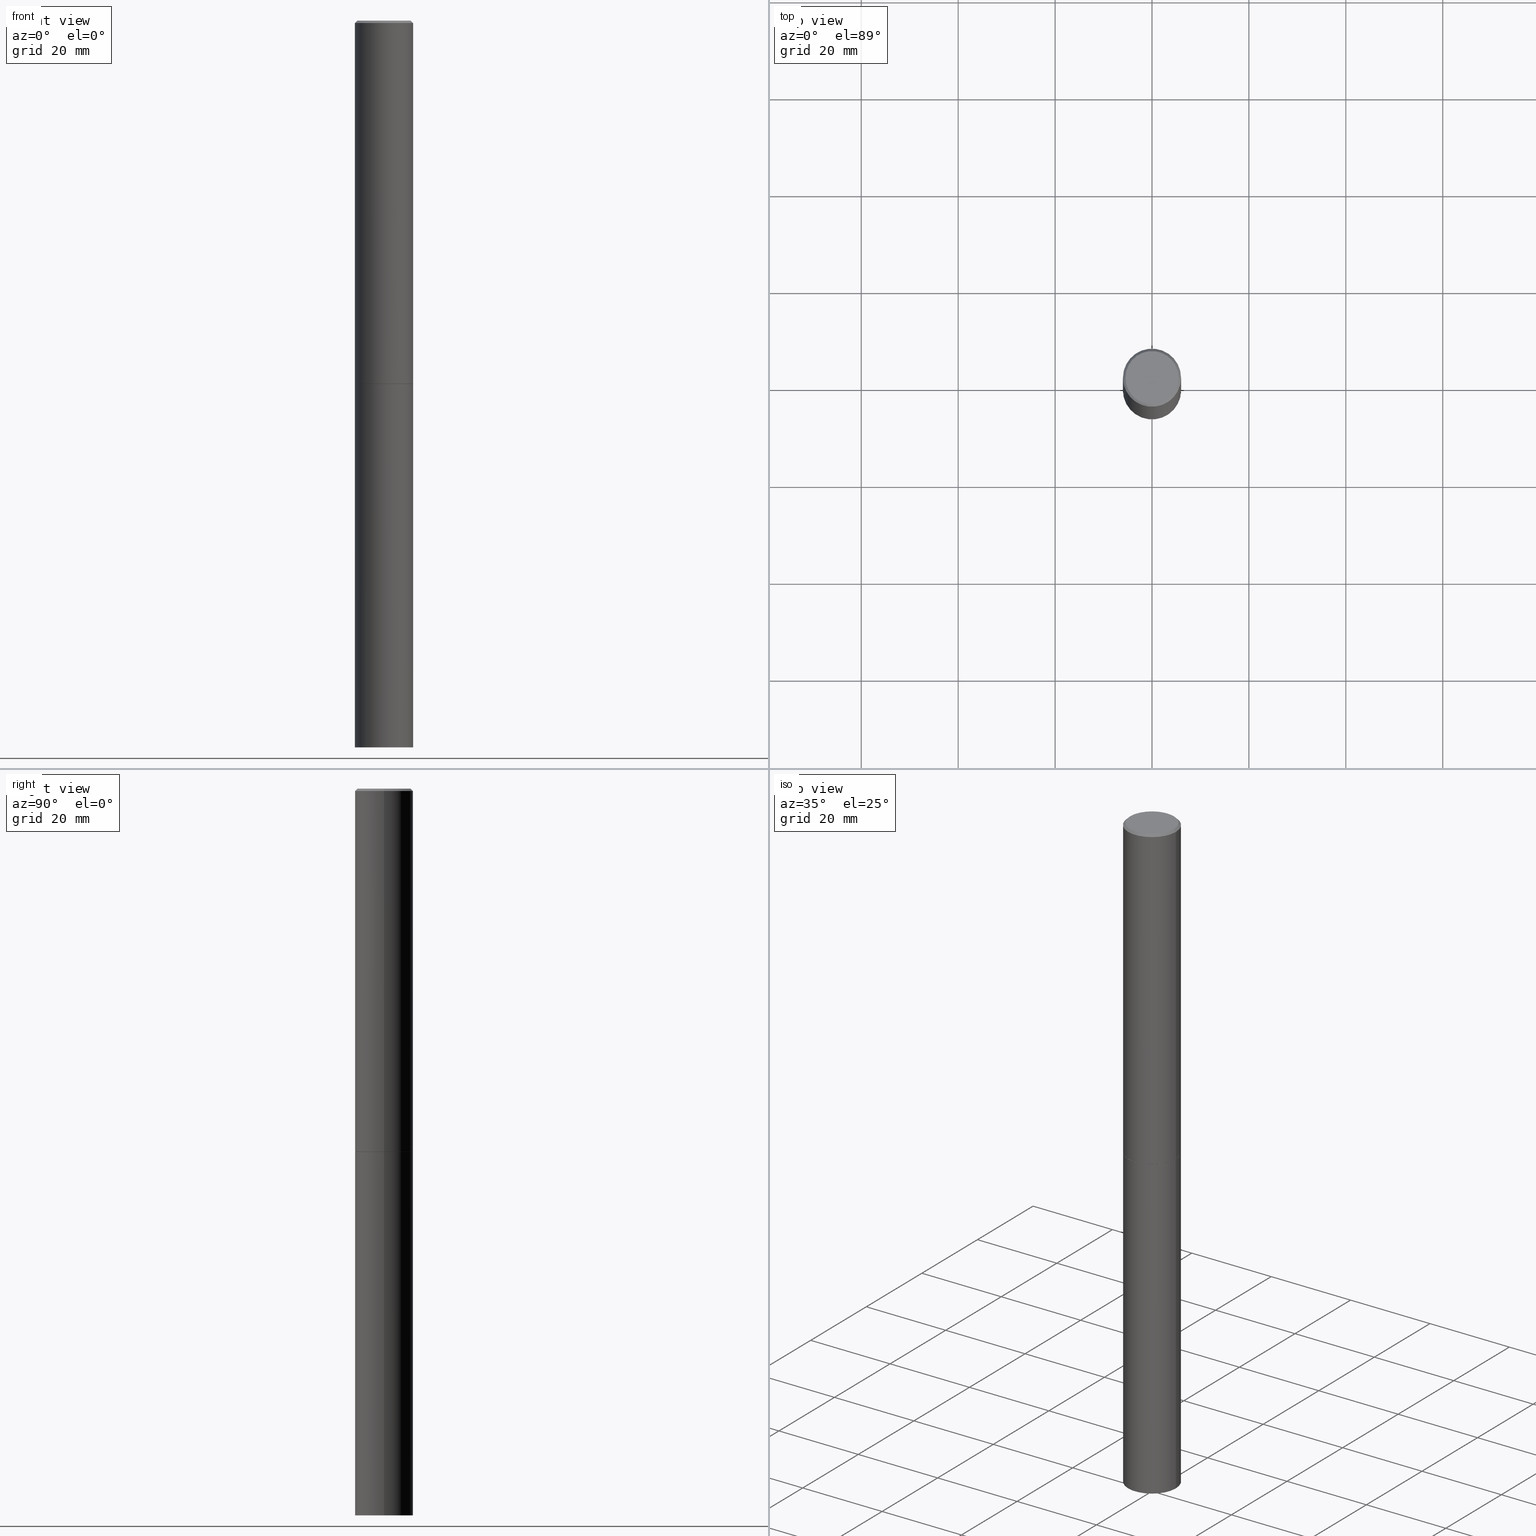
[diagram: canonical four-view strip — front | top / right | iso, engineering-drawing reading convention]
A machine part, canonical four-view strip (front | top / right | iso — engineering-drawing reading convention). The complete STEP part file that produces these views, byte-faithful:
ISO-10303-21;
HEADER;
FILE_DESCRIPTION (( 'STEP AP203' ),
    '1' );
FILE_NAME ('49499.STEP',
    '2024-02-29T00:26:21',
    ( '' ),
    ( '' ),
    'SwSTEP 2.0',
    'SolidWorks 2023',
    '' );
FILE_SCHEMA (( 'CONFIG_CONTROL_DESIGN' ));
ENDSEC;

DATA;
#1 = FACE_OUTER_BOUND ( 'NONE', #103, .T. ) ;
#2 = CALENDAR_DATE ( 2024, 28, 2 ) ;
#3 = CARTESIAN_POINT ( 'NONE',  ( -1.043851414335219820E-46, 1.490343170380447200E-32, 4.268512490100411279E-18 ) ) ;
#4 = ADVANCED_FACE ( 'NONE', ( #272 ), #139, .T. ) ;
#5 = DATE_TIME_ROLE ( 'classification_date' ) ;
#6 = CIRCLE ( 'NONE', #169, 0.2351999999999999924 ) ;
#7 = DIRECTION ( 'NONE',  ( -1.000000000000000000, 6.982962677686265922E-15, -4.876176775795935793E-29 ) ) ;
#8 = CYLINDRICAL_SURFACE ( 'NONE', #330, 0.2361999999999998545 ) ;
#9 = DIRECTION ( 'NONE',  ( 2.445468806185136597E-29, -3.491481338843145583E-15, -1.000000000000000000 ) ) ;
#10 = DESIGN_CONTEXT ( 'detailed design', #21, 'design' ) ;
#11 = DIRECTION ( 'NONE',  ( -2.445468806185136597E-29, 3.491481338843145583E-15, 1.000000000000000000 ) ) ;
#12 = DIRECTION ( 'NONE',  ( 1.000000000000000000, -6.982962677686265922E-15, 4.876176775795935793E-29 ) ) ;
#13 = CIRCLE ( 'NONE', #228, 0.2361999999999999933 ) ;
#14 = CARTESIAN_POINT ( 'NONE',  ( -0.2351999999999999924, -8.632801980346176439E-15, -2.952700000000000102 ) ) ;
#15 = CARTESIAN_POINT ( 'NONE',  ( -0.2361999999999997712, 1.579546157692631452E-15, -0.02000000000000007674 ) ) ;
#16 = ORIENTED_EDGE ( 'NONE', *, *, #101, .T. ) ;
#17 = ORIENTED_EDGE ( 'NONE', *, *, #239, .T. ) ;
#18 = ORIENTED_EDGE ( 'NONE', *, *, #58, .F. ) ;
#19 =( NAMED_UNIT ( * ) PLANE_ANGLE_UNIT ( ) SI_UNIT ( $, .RADIAN. ) );
#20 = VERTEX_POINT ( 'NONE', #45 ) ;
#21 = APPLICATION_CONTEXT ( 'configuration controlled 3d designs of mechanical parts and assemblies' ) ;
#22 = ADVANCED_FACE ( 'NONE', ( #218 ), #120, .F. ) ;
#23 = DIRECTION ( 'NONE',  ( -2.445468806185136597E-29, 3.491481338843145583E-15, 1.000000000000000000 ) ) ;
#24 = DIRECTION ( 'NONE',  ( -2.445468806185136597E-29, 3.491481338843145583E-15, 1.000000000000000000 ) ) ;
#25 = AXIS2_PLACEMENT_3D ( 'NONE', #267, #256, #87 ) ;
#26 = PERSON_AND_ORGANIZATION ( #57, #29 ) ;
#27 = EDGE_CURVE ( 'NONE', #189, #295, #97, .T. ) ;
#28 = CLOSED_SHELL ( 'NONE', ( #192, #145, #292, #67 ) ) ;
#29 = ORGANIZATION ( 'UNSPECIFIED', 'UNSPECIFIED', '' ) ;
#30 = DIRECTION ( 'NONE',  ( -0.7071067811865465735, 2.468850131082246805E-15, -0.7071067811865484609 ) ) ;
#31 = DIRECTION ( 'NONE',  ( 1.000000000000000000, -6.982962677686266711E-15, 0.000000000000000000 ) ) ;
#32 = DATE_AND_TIME ( #179, #128 ) ;
#33 = PRODUCT ( '49499', '49499', '', ( #167 ) ) ;
#34 = CC_DESIGN_APPROVAL ( #280, ( #366 ) ) ;
#35 = PLANE ( 'NONE',  #278 ) ;
#36 = DIRECTION ( 'NONE',  ( -2.445468806185136597E-29, 3.491481338843145583E-15, 1.000000000000000000 ) ) ;
#37 = PERSON_AND_ORGANIZATION_ROLE ( 'classification_officer' ) ;
#38 = LINE ( 'NONE', #147, #206 ) ;
#39 = SHAPE_DEFINITION_REPRESENTATION ( #212, #71 ) ;
#40 = DIRECTION ( 'NONE',  ( 1.000000000000000000, -6.982962677686273021E-15, 0.000000000000000000 ) ) ;
#41 = CIRCLE ( 'NONE', #50, 0.2361999999999999933 ) ;
#42 = CC_DESIGN_APPROVAL ( #151, ( #142 ) ) ;
#43 = ORIENTED_EDGE ( 'NONE', *, *, #239, .F. ) ;
#44 = EDGE_CURVE ( 'NONE', #183, #46, #38, .T. ) ;
#45 = CARTESIAN_POINT ( 'NONE',  ( 0.2161999999999997257, -1.586759460484350213E-15, 4.268512490111238857E-18 ) ) ;
#46 = VERTEX_POINT ( 'NONE', #244 ) ;
#47 = DIRECTION ( 'NONE',  ( 1.000000000000000000, -6.982962677686268288E-15, 0.000000000000000000 ) ) ;
#48 = ORIENTED_EDGE ( 'NONE', *, *, #177, .T. ) ;
#49 = CARTESIAN_POINT ( 'NONE',  ( 7.218290275216666916E-29, -1.030580546786331359E-14, -2.951700000000000212 ) ) ;
#50 = AXIS2_PLACEMENT_3D ( 'NONE', #268, #11, #349 ) ;
#51 = ORIENTED_EDGE ( 'NONE', *, *, #308, .T. ) ;
#52 = ORIENTED_EDGE ( 'NONE', *, *, #159, .T. ) ;
#53 = AXIS2_PLACEMENT_3D ( 'NONE', #350, #23, #137 ) ;
#54 = CIRCLE ( 'NONE', #304, 0.2161999999999997257 ) ;
#55 = CYLINDRICAL_SURFACE ( 'NONE', #232, 0.2361999999999999933 ) ;
#56 = PERSON_AND_ORGANIZATION ( #57, #29 ) ;
#57 = PERSON ( 'UNSPECIFIED', 'UNSPECIFIED', 'UNSPECIFIED', ('UNSPECIFIED'), ('UNSPECIFIED'), ('UNSPECIFIED') ) ;
#58 = EDGE_CURVE ( 'NONE', #248, #329, #91, .T. ) ;
#59 = CLOSED_SHELL ( 'NONE', ( #185, #132, #196, #205, #331, #4, #22, #334 ) ) ;
#60 = CC_DESIGN_PERSON_AND_ORGANIZATION_ASSIGNMENT ( #344, #37, ( #207 ) ) ;
#61 = DIRECTION ( 'NONE',  ( -2.445468806185136597E-29, 3.491481338843145583E-15, 1.000000000000000000 ) ) ;
#62 = AXIS2_PLACEMENT_3D ( 'NONE', #221, #149, #316 ) ;
#63 = VECTOR ( 'NONE', #305, 39.37007874015748143 ) ;
#64 = FACE_OUTER_BOUND ( 'NONE', #327, .T. ) ;
#65 = EDGE_LOOP ( 'NONE', ( #18, #16, #129, #127 ) ) ;
#66 = DIRECTION ( 'NONE',  ( -2.445468806185136877E-29, 3.491481338843145188E-15, 1.000000000000000000 ) ) ;
#67 = ADVANCED_FACE ( 'NONE', ( #215 ), #119, .T. ) ;
#68 = AXIS2_PLACEMENT_3D ( 'NONE', #315, #61, #269 ) ;
#69 = FACE_OUTER_BOUND ( 'NONE', #277, .T. ) ;
#70 = LOCAL_TIME ( 19, 26, 21.00000000000000000, #146 ) ;
#71 = ADVANCED_BREP_SHAPE_REPRESENTATION ( '49499', ( #289, #172, #175 ), #342 ) ;
#72 = ORIENTED_EDGE ( 'NONE', *, *, #90, .T. ) ;
#73 = LINE ( 'NONE', #223, #76 ) ;
#74 = ORIENTED_EDGE ( 'NONE', *, *, #265, .T. ) ;
#75 = EDGE_LOOP ( 'NONE', ( #95, #225 ) ) ;
#76 = VECTOR ( 'NONE', #326, 39.37007874015748143 ) ;
#77 = ORIENTED_EDGE ( 'NONE', *, *, #303, .F. ) ;
#78 = FACE_OUTER_BOUND ( 'NONE', #274, .T. ) ;
#79 = APPROVAL_DATE_TIME ( #82, #280 ) ;
#80 = LINE ( 'NONE', #198, #63 ) ;
#81 = CIRCLE ( 'NONE', #257, 0.2361999999999999933 ) ;
#82 = DATE_AND_TIME ( #335, #148 ) ;
#83 = CARTESIAN_POINT ( 'NONE',  ( 4.890937612370292426E-31, -6.982962677686317493E-17, -0.02000000000000007674 ) ) ;
#84 = CARTESIAN_POINT ( 'NONE',  ( 4.890937612370292426E-31, -6.982962677686317493E-17, -0.02000000000000007674 ) ) ;
#85 = CARTESIAN_POINT ( 'NONE',  ( 1.509716530915768746E-15, 0.2161999999999997257, -7.527240092128370190E-16 ) ) ;
#86 = APPROVAL_ROLE ( '' ) ;
#87 = DIRECTION ( 'NONE',  ( 1.000000000000000000, -6.982962677686268288E-15, 0.000000000000000000 ) ) ;
#88 = PERSON_AND_ORGANIZATION ( #57, #29 ) ;
#89 = CIRCLE ( 'NONE', #233, 0.2161999999999997257 ) ;
#90 = EDGE_CURVE ( 'NONE', #183, #248, #13, .T. ) ;
#91 = LINE ( 'NONE', #180, #174 ) ;
#92 = VERTEX_POINT ( 'NONE', #294 ) ;
#93 = COORDINATED_UNIVERSAL_TIME_OFFSET ( 5, 0, .BEHIND. ) ;
#94 = CIRCLE ( 'NONE', #364, 0.2361999999999999933 ) ;
#95 = ORIENTED_EDGE ( 'NONE', *, *, #104, .T. ) ;
#96 = EDGE_LOOP ( 'NONE', ( #222, #328 ) ) ;
#97 = LINE ( 'NONE', #321, #181 ) ;
#98 = CARTESIAN_POINT ( 'NONE',  ( 0.2361999999999999933, -1.195518125233281011E-14, -2.951700000000000212 ) ) ;
#99 = VERTEX_POINT ( 'NONE', #98 ) ;
#100 = ORIENTED_EDGE ( 'NONE', *, *, #343, .F. ) ;
#101 = EDGE_CURVE ( 'NONE', #248, #183, #312, .T. ) ;
#102 = ORIENTED_EDGE ( 'NONE', *, *, #214, .T. ) ;
#103 = EDGE_LOOP ( 'NONE', ( #157, #52, #125, #219 ) ) ;
#104 = EDGE_CURVE ( 'NONE', #46, #329, #41, .T. ) ;
#105 = PERSON_AND_ORGANIZATION ( #57, #29 ) ;
#106 = PLANE ( 'NONE',  #229 ) ;
#107 = DIRECTION ( 'NONE',  ( 0.000000000000000000, 0.000000000000000000, 1.000000000000000000 ) ) ;
#108 = DIRECTION ( 'NONE',  ( -1.000000000000000000, 6.982962677686265922E-15, -4.876176775795935793E-29 ) ) ;
#109 = AXIS2_PLACEMENT_3D ( 'NONE', #124, #352, #322 ) ;
#110 = DIRECTION ( 'NONE',  ( -1.000000000000000000, 6.982962677686265922E-15, -4.876176775795935793E-29 ) ) ;
#111 = DIRECTION ( 'NONE',  ( 1.000000000000000000, -6.982962677686266711E-15, 4.876176775795936353E-29 ) ) ;
#112 = DIRECTION ( 'NONE',  ( -2.445468806185136877E-29, 3.491481338843145188E-15, 1.000000000000000000 ) ) ;
#113 = DIRECTION ( 'NONE',  ( 2.438088387897960049E-29, -3.491481338843145188E-15, -1.000000000000000000 ) ) ;
#114 = APPROVAL_STATUS ( 'not_yet_approved' ) ;
#115 = CARTESIAN_POINT ( 'NONE',  ( 0.000000000000000000, 0.000000000000000000, 0.000000000000000000 ) ) ;
#116 = CONICAL_SURFACE ( 'NONE', #53, 0.2351999999999999924, 0.7853981633975507526 ) ;
#117 = VECTOR ( 'NONE', #30, 39.37007874015748143 ) ;
#118 = CARTESIAN_POINT ( 'NONE',  ( 0.2361999999999997712, -1.690279253850497193E-15, -0.02000000000000007674 ) ) ;
#119 = CYLINDRICAL_SURFACE ( 'NONE', #68, 0.2361999999999999933 ) ;
#120 = PLANE ( 'NONE',  #299 ) ;
#121 = CC_DESIGN_PERSON_AND_ORGANIZATION_ASSIGNMENT ( #26, #133, ( #142 ) ) ;
#122 = CONICAL_SURFACE ( 'NONE', #161, 0.2361999999999997712, 0.7853981633974469467 ) ;
#123 = DIRECTION ( 'NONE',  ( 1.000000000000000000, -6.982962677686266711E-15, 4.876176775795935793E-29 ) ) ;
#124 = CARTESIAN_POINT ( 'NONE',  ( 7.220735744022852519E-29, -1.030929694920215502E-14, -2.952700000000000102 ) ) ;
#125 = ORIENTED_EDGE ( 'NONE', *, *, #320, .T. ) ;
#126 = CC_DESIGN_PERSON_AND_ORGANIZATION_ASSIGNMENT ( #105, #197, ( #142 ) ) ;
#127 = ORIENTED_EDGE ( 'NONE', *, *, #135, .F. ) ;
#128 = LOCAL_TIME ( 19, 26, 21.00000000000000000, #93 ) ;
#129 = ORIENTED_EDGE ( 'NONE', *, *, #44, .T. ) ;
#130 = DIRECTION ( 'NONE',  ( -2.445468806185136597E-29, 3.491481338843145583E-15, 1.000000000000000000 ) ) ;
#131 = VERTEX_POINT ( 'NONE', #15 ) ;
#132 = ADVANCED_FACE ( 'NONE', ( #64 ), #8, .T. ) ;
#133 = PERSON_AND_ORGANIZATION_ROLE ( 'creator' ) ;
#134 = FACE_OUTER_BOUND ( 'NONE', #96, .T. ) ;
#135 = EDGE_CURVE ( 'NONE', #329, #46, #351, .T. ) ;
#136 = APPLICATION_PROTOCOL_DEFINITION ( 'international standard', 'config_control_design', 1994, #194 ) ;
#137 = DIRECTION ( 'NONE',  ( 1.000000000000000000, -6.982962677686268288E-15, 0.000000000000000000 ) ) ;
#138 = CARTESIAN_POINT ( 'NONE',  ( -0.2361999999999997712, 1.579546157692631452E-15, -0.02000000000000007674 ) ) ;
#139 = CONICAL_SURFACE ( 'NONE', #249, 0.2351999999999999924, 0.7853981633975507526 ) ;
#140 = LOCAL_TIME ( 19, 26, 21.00000000000000000, #332 ) ;
#141 = LINE ( 'NONE', #138, #117 ) ;
#142 = PRODUCT_DEFINITION_FORMATION_WITH_SPECIFIED_SOURCE ( 'ANY', '', #33, .NOT_KNOWN. ) ;
#143 = DIRECTION ( 'NONE',  ( 1.000000000000000000, -6.982962677686265133E-15, 0.000000000000000000 ) ) ;
#144 = DIRECTION ( 'NONE',  ( -2.438088387897960049E-29, 3.491481338843145188E-15, 1.000000000000000000 ) ) ;
#145 = ADVANCED_FACE ( 'NONE', ( #69 ), #35, .T. ) ;
#146 = COORDINATED_UNIVERSAL_TIME_OFFSET ( 5, 0, .BEHIND. ) ;
#147 = CARTESIAN_POINT ( 'NONE',  ( 0.2361999999999999933, -1.649375784469496131E-15, 1.151752954443000088E-29 ) ) ;
#148 = LOCAL_TIME ( 19, 26, 21.00000000000000000, #208 ) ;
#149 = DIRECTION ( 'NONE',  ( -2.445468806185136597E-29, 3.491481338843145583E-15, 1.000000000000000000 ) ) ;
#150 = ORIENTED_EDGE ( 'NONE', *, *, #177, .F. ) ;
#151 = APPROVAL ( #114, 'UNSPECIFIED' ) ;
#152 = CARTESIAN_POINT ( 'NONE',  ( 1.649375784469640295E-15, 0.2361999999999793709, -5.905500000000000860 ) ) ;
#153 = ORIENTED_EDGE ( 'NONE', *, *, #214, .F. ) ;
#154 = CARTESIAN_POINT ( 'NONE',  ( -0.2361999999999999933, -1.378581805600481631E-14, -5.905499999999999972 ) ) ;
#155 = VERTEX_POINT ( 'NONE', #118 ) ;
#156 = CARTESIAN_POINT ( 'NONE',  ( 7.220735744022852519E-29, -1.030929694920215502E-14, -2.952700000000000102 ) ) ;
#157 = ORIENTED_EDGE ( 'NONE', *, *, #170, .F. ) ;
#158 = ORIENTED_EDGE ( 'NONE', *, *, #363, .T. ) ;
#159 = EDGE_CURVE ( 'NONE', #295, #99, #81, .T. ) ;
#160 = LENGTH_MEASURE_WITH_UNIT ( LENGTH_MEASURE( 0.02539999999999999897 ), #357 );
#161 = AXIS2_PLACEMENT_3D ( 'NONE', #84, #9, #195 ) ;
#162 = VECTOR ( 'NONE', #311, 39.37007874015748143 ) ;
#163 = CARTESIAN_POINT ( 'NONE',  ( 0.000000000000000000, 0.000000000000000000, 0.000000000000000000 ) ) ;
#164 = APPROVAL ( #347, 'UNSPECIFIED' ) ;
#165 = PERSON_AND_ORGANIZATION_ROLE ( 'creator' ) ;
#166 = DIRECTION ( 'NONE',  ( 2.438088387897960049E-29, -3.491481338843145188E-15, -1.000000000000000000 ) ) ;
#167 = MECHANICAL_CONTEXT ( 'NONE', #194, 'mechanical' ) ;
#168 = DIMENSIONAL_EXPONENTS ( 1.000000000000000000, 0.000000000000000000, 0.000000000000000000, 0.000000000000000000, 0.000000000000000000, 0.000000000000000000, 0.000000000000000000 ) ;
#169 = AXIS2_PLACEMENT_3D ( 'NONE', #156, #188, #47 ) ;
#170 = EDGE_CURVE ( 'NONE', #295, #131, #266, .T. ) ;
#171 = DIRECTION ( 'NONE',  ( 1.000000000000000000, -6.982962677686266711E-15, 4.876176775795935793E-29 ) ) ;
#172 = MANIFOLD_SOLID_BREP ( 'Body-Move/Copy2[2]', #59 ) ;
#173 = DIRECTION ( 'NONE',  ( -2.445468806185136597E-29, 3.491481338843145583E-15, 1.000000000000000000 ) ) ;
#174 = VECTOR ( 'NONE', #286, 39.37007874015748143 ) ;
#175 = AXIS2_PLACEMENT_3D ( 'NONE', #163, #107, #281 ) ;
#176 = CARTESIAN_POINT ( 'NONE',  ( 1.444171603492632270E-28, -2.061894304653819197E-14, -5.905499999999999972 ) ) ;
#177 = EDGE_CURVE ( 'NONE', #189, #92, #341, .T. ) ;
#178 = CARTESIAN_POINT ( 'NONE',  ( 7.220735744022852519E-29, -1.030929694920215502E-14, -2.952700000000000102 ) ) ;
#179 = CALENDAR_DATE ( 2024, 28, 2 ) ;
#180 = CARTESIAN_POINT ( 'NONE',  ( -0.2361999999999999933, 1.678301941865356591E-15, -1.161852468318208757E-29 ) ) ;
#181 = VECTOR ( 'NONE', #348, 39.37007874015748143 ) ;
#182 = LOCAL_TIME ( 19, 26, 21.00000000000000000, #203 ) ;
#183 = VERTEX_POINT ( 'NONE', #220 ) ;
#184 = VERTEX_POINT ( 'NONE', #300 ) ;
#185 = ADVANCED_FACE ( 'NONE', ( #210 ), #116, .T. ) ;
#186 = ORIENTED_EDGE ( 'NONE', *, *, #284, .T. ) ;
#187 = FACE_OUTER_BOUND ( 'NONE', #227, .T. ) ;
#188 = DIRECTION ( 'NONE',  ( -2.445468806185136597E-29, 3.491481338843145583E-15, 1.000000000000000000 ) ) ;
#189 = VERTEX_POINT ( 'NONE', #14 ) ;
#190 = VECTOR ( 'NONE', #112, 39.37007874015748143 ) ;
#191 = AXIS2_PLACEMENT_3D ( 'NONE', #83, #285, #31 ) ;
#192 = ADVANCED_FACE ( 'NONE', ( #78 ), #55, .T. ) ;
#193 = EDGE_LOOP ( 'NONE', ( #319, #48, #102, #276 ) ) ;
#194 = APPLICATION_CONTEXT ( 'configuration controlled 3d designs of mechanical parts and assemblies' ) ;
#195 = DIRECTION ( 'NONE',  ( -1.000000000000000000, 6.982962677686266711E-15, 0.000000000000000000 ) ) ;
#196 = ADVANCED_FACE ( 'NONE', ( #245 ), #323, .T. ) ;
#197 = PERSON_AND_ORGANIZATION_ROLE ( 'design_supplier' ) ;
#198 = CARTESIAN_POINT ( 'NONE',  ( 0.2361999999999997712, -1.690279253850497193E-15, -0.02000000000000007674 ) ) ;
#199 = AXIS2_PLACEMENT_3D ( 'NONE', #115, #237, #171 ) ;
#200 = PERSON_AND_ORGANIZATION_ROLE ( 'design_owner' ) ;
#201 = CALENDAR_DATE ( 2024, 28, 2 ) ;
#202 = DIRECTION ( 'NONE',  ( -2.445468806185136597E-29, 3.491481338843145583E-15, 1.000000000000000000 ) ) ;
#203 = COORDINATED_UNIVERSAL_TIME_OFFSET ( 5, 0, .BEHIND. ) ;
#204 = CARTESIAN_POINT ( 'NONE',  ( 0.2361999999999998545, -1.649375784469495145E-15, 1.151752954442999387E-29 ) ) ;
#205 = ADVANCED_FACE ( 'NONE', ( #187 ), #122, .T. ) ;
#206 = VECTOR ( 'NONE', #66, 39.37007874015748143 ) ;
#207 = SECURITY_CLASSIFICATION ( '', '', #290 ) ;
#208 = COORDINATED_UNIVERSAL_TIME_OFFSET ( 5, 0, .BEHIND. ) ;
#209 = CARTESIAN_POINT ( 'NONE',  ( -0.2361999999999999933, -1.378581805600481631E-14, -2.952700000000000102 ) ) ;
#210 = FACE_OUTER_BOUND ( 'NONE', #301, .T. ) ;
#211 = DIRECTION ( 'NONE',  ( 1.000000000000000000, -6.982962677686268288E-15, 0.000000000000000000 ) ) ;
#212 = PRODUCT_DEFINITION_SHAPE ( 'NONE', 'NONE',  #366 ) ;
#213 = DATE_AND_TIME ( #353, #70 ) ;
#214 = EDGE_CURVE ( 'NONE', #92, #99, #73, .T. ) ;
#215 = FACE_OUTER_BOUND ( 'NONE', #65, .T. ) ;
#216 = CIRCLE ( 'NONE', #283, 0.2361999999999997712 ) ;
#217 = PERSON_AND_ORGANIZATION ( #57, #29 ) ;
#218 = FACE_OUTER_BOUND ( 'NONE', #273, .T. ) ;
#219 = ORIENTED_EDGE ( 'NONE', *, *, #265, .F. ) ;
#220 = CARTESIAN_POINT ( 'NONE',  ( 0.2361999999999999933, -2.226831883100769165E-14, -5.905499999999999972 ) ) ;
#221 = CARTESIAN_POINT ( 'NONE',  ( 1.444171603492632270E-28, -2.061894304653819197E-14, -5.905499999999999972 ) ) ;
#222 = ORIENTED_EDGE ( 'NONE', *, *, #303, .T. ) ;
#223 = CARTESIAN_POINT ( 'NONE',  ( 0.2351999999999999924, -1.195168977099396553E-14, -2.952700000000000102 ) ) ;
#224 = ORIENTED_EDGE ( 'NONE', *, *, #27, .T. ) ;
#225 = ORIENTED_EDGE ( 'NONE', *, *, #135, .T. ) ;
#226 =( NAMED_UNIT ( * ) SI_UNIT ( $, .STERADIAN. ) SOLID_ANGLE_UNIT ( ) );
#227 = EDGE_LOOP ( 'NONE', ( #361, #77, #345, #74 ) ) ;
#228 = AXIS2_PLACEMENT_3D ( 'NONE', #176, #355, #40 ) ;
#229 = AXIS2_PLACEMENT_3D ( 'NONE', #85, #113, #110 ) ;
#230 = CC_DESIGN_PERSON_AND_ORGANIZATION_ASSIGNMENT ( #56, #165, ( #366 ) ) ;
#231 = LINE ( 'NONE', #204, #162 ) ;
#232 = AXIS2_PLACEMENT_3D ( 'NONE', #346, #253, #111 ) ;
#233 = AXIS2_PLACEMENT_3D ( 'NONE', #333, #202, #309 ) ;
#234 = PERSON_AND_ORGANIZATION ( #57, #29 ) ;
#235 = DIRECTION ( 'NONE',  ( -2.445468806185136597E-29, 3.491481338843145583E-15, 1.000000000000000000 ) ) ;
#236 = DATE_AND_TIME ( #201, #182 ) ;
#237 = DIRECTION ( 'NONE',  ( -2.445468806185136597E-29, 3.491481338843145583E-15, 1.000000000000000000 ) ) ;
#238 = CARTESIAN_POINT ( 'NONE',  ( 7.218290275216666916E-29, -1.030580546786331359E-14, -2.951700000000000212 ) ) ;
#239 = EDGE_CURVE ( 'NONE', #92, #189, #6, .T. ) ;
#240 = DIRECTION ( 'NONE',  ( -2.445468806185136597E-29, 3.491481338843145583E-15, 1.000000000000000000 ) ) ;
#241 = EDGE_LOOP ( 'NONE', ( #100, #158, #51, #247 ) ) ;
#242 = CC_DESIGN_APPROVAL ( #164, ( #207 ) ) ;
#243 = DIRECTION ( 'NONE',  ( 2.438088387897960049E-29, -3.491481338843145188E-15, -1.000000000000000000 ) ) ;
#244 = CARTESIAN_POINT ( 'NONE',  ( 0.2361999999999999933, -1.195867273367164996E-14, -2.952700000000000102 ) ) ;
#245 = FACE_OUTER_BOUND ( 'NONE', #241, .T. ) ;
#246 = CC_DESIGN_PERSON_AND_ORGANIZATION_ASSIGNMENT ( #88, #200, ( #33 ) ) ;
#247 = ORIENTED_EDGE ( 'NONE', *, *, #325, .F. ) ;
#248 = VERTEX_POINT ( 'NONE', #154 ) ;
#249 = AXIS2_PLACEMENT_3D ( 'NONE', #178, #240, #211 ) ;
#250 = APPROVAL_PERSON_ORGANIZATION ( #217, #164, #314 ) ;
#251 = CARTESIAN_POINT ( 'NONE',  ( 4.890937612370292426E-31, -6.982962677686317493E-17, -0.02000000000000007674 ) ) ;
#252 = ORIENTED_EDGE ( 'NONE', *, *, #58, .T. ) ;
#253 = DIRECTION ( 'NONE',  ( -2.445468806185136597E-29, 3.491481338843145583E-15, 1.000000000000000000 ) ) ;
#254 = DIRECTION ( 'NONE',  ( 1.000000000000000000, -6.982962677686265133E-15, 0.000000000000000000 ) ) ;
#255 = ORIENTED_EDGE ( 'NONE', *, *, #308, .F. ) ;
#256 = DIRECTION ( 'NONE',  ( -2.445468806185136597E-29, 3.491481338843145583E-15, 1.000000000000000000 ) ) ;
#257 = AXIS2_PLACEMENT_3D ( 'NONE', #238, #173, #143 ) ;
#258 = CARTESIAN_POINT ( 'NONE',  ( -0.2361999999999998545, 1.678301941865355605E-15, -1.161852468318208056E-29 ) ) ;
#259 = CARTESIAN_POINT ( 'NONE',  ( 1.649375784469568312E-15, 0.2361999999999896960, -2.952700000000000990 ) ) ;
#260 = PRODUCT_RELATED_PRODUCT_CATEGORY ( 'detail', '', ( #33 ) ) ;
#261 = DATE_AND_TIME ( #2, #140 ) ;
#262 = DIRECTION ( 'NONE',  ( 2.445468806185136597E-29, -3.491481338843145583E-15, -1.000000000000000000 ) ) ;
#263 = APPROVAL_ROLE ( '' ) ;
#264 = CARTESIAN_POINT ( 'NONE',  ( -0.2362000000000000210, -3.509515605454727710E-15, -2.951700000000000212 ) ) ;
#265 = EDGE_CURVE ( 'NONE', #131, #155, #216, .T. ) ;
#266 = LINE ( 'NONE', #258, #190 ) ;
#267 = CARTESIAN_POINT ( 'NONE',  ( 7.220735744022852519E-29, -1.030929694920215502E-14, -2.952700000000000102 ) ) ;
#268 = CARTESIAN_POINT ( 'NONE',  ( 7.220735744022852519E-29, -1.030929694920215502E-14, -2.952700000000000102 ) ) ;
#269 = DIRECTION ( 'NONE',  ( 1.000000000000000000, -6.982962677686266711E-15, 4.876176775795936353E-29 ) ) ;
#270 = CIRCLE ( 'NONE', #191, 0.2361999999999997712 ) ;
#271 = CC_DESIGN_DATE_AND_TIME_ASSIGNMENT ( #261, #282, ( #366 ) ) ;
#272 = FACE_OUTER_BOUND ( 'NONE', #193, .T. ) ;
#273 = EDGE_LOOP ( 'NONE', ( #43, #150 ) ) ;
#274 = EDGE_LOOP ( 'NONE', ( #72, #252, #324, #297 ) ) ;
#275 = DIRECTION ( 'NONE',  ( 1.000000000000000000, -6.982962677686266711E-15, 0.000000000000000000 ) ) ;
#276 = ORIENTED_EDGE ( 'NONE', *, *, #159, .F. ) ;
#277 = EDGE_LOOP ( 'NONE', ( #293, #298 ) ) ;
#278 = AXIS2_PLACEMENT_3D ( 'NONE', #152, #243, #7 ) ;
#279 = APPROVAL_DATE_TIME ( #236, #151 ) ;
#280 = APPROVAL ( #306, 'UNSPECIFIED' ) ;
#281 = DIRECTION ( 'NONE',  ( 1.000000000000000000, 0.000000000000000000, 0.000000000000000000 ) ) ;
#282 = DATE_TIME_ROLE ( 'creation_date' ) ;
#283 = AXIS2_PLACEMENT_3D ( 'NONE', #302, #24, #275 ) ;
#284 = EDGE_CURVE ( 'NONE', #99, #295, #94, .T. ) ;
#285 = DIRECTION ( 'NONE',  ( -2.445468806185136597E-29, 3.491481338843145583E-15, 1.000000000000000000 ) ) ;
#286 = DIRECTION ( 'NONE',  ( -2.445468806185136877E-29, 3.491481338843145188E-15, 1.000000000000000000 ) ) ;
#287 = APPROVAL_PERSON_ORGANIZATION ( #338, #151, #86 ) ;
#288 = CARTESIAN_POINT ( 'NONE',  ( 0.000000000000000000, 0.000000000000000000, 0.000000000000000000 ) ) ;
#289 = MANIFOLD_SOLID_BREP ( 'Body-Move/Copy2[1]', #28 ) ;
#290 = SECURITY_CLASSIFICATION_LEVEL ( 'unclassified' ) ;
#291 = CARTESIAN_POINT ( 'NONE',  ( 7.220735744022852519E-29, -1.030929694920215502E-14, -2.952700000000000102 ) ) ;
#292 = ADVANCED_FACE ( 'NONE', ( #340 ), #307, .F. ) ;
#293 = ORIENTED_EDGE ( 'NONE', *, *, #90, .F. ) ;
#294 = CARTESIAN_POINT ( 'NONE',  ( 0.2351999999999999924, -1.195168977099396553E-14, -2.952700000000000102 ) ) ;
#295 = VERTEX_POINT ( 'NONE', #264 ) ;
#296 = CC_DESIGN_DATE_AND_TIME_ASSIGNMENT ( #32, #5, ( #207 ) ) ;
#297 = ORIENTED_EDGE ( 'NONE', *, *, #44, .F. ) ;
#298 = ORIENTED_EDGE ( 'NONE', *, *, #101, .F. ) ;
#299 = AXIS2_PLACEMENT_3D ( 'NONE', #291, #144, #12 ) ;
#300 = CARTESIAN_POINT ( 'NONE',  ( -0.2161999999999997257, 1.544631344304200197E-15, 4.268512490089730842E-18 ) ) ;
#301 = EDGE_LOOP ( 'NONE', ( #17, #224, #356, #153 ) ) ;
#302 = CARTESIAN_POINT ( 'NONE',  ( 4.890937612370292426E-31, -6.982962677686317493E-17, -0.02000000000000007674 ) ) ;
#303 = EDGE_CURVE ( 'NONE', #184, #20, #54, .T. ) ;
#304 = AXIS2_PLACEMENT_3D ( 'NONE', #3, #235, #337 ) ;
#305 = DIRECTION ( 'NONE',  ( 0.7071067811865465735, -7.319954787623252890E-15, -0.7071067811865484609 ) ) ;
#306 = APPROVAL_STATUS ( 'not_yet_approved' ) ;
#307 = PLANE ( 'NONE',  #336 ) ;
#308 = EDGE_CURVE ( 'NONE', #155, #131, #270, .T. ) ;
#309 = DIRECTION ( 'NONE',  ( 1.000000000000000000, -6.982962677686267499E-15, 4.876217060660161841E-29 ) ) ;
#310 = UNCERTAINTY_MEASURE_WITH_UNIT (LENGTH_MEASURE( 1.000000000000000082E-05 ), #360, 'distance_accuracy_value', 'NONE');
#311 = DIRECTION ( 'NONE',  ( -2.445468806185136877E-29, 3.491481338843145188E-15, 1.000000000000000000 ) ) ;
#312 = CIRCLE ( 'NONE', #62, 0.2361999999999999933 ) ;
#313 = APPROVAL_PERSON_ORGANIZATION ( #234, #280, #263 ) ;
#314 = APPROVAL_ROLE ( '' ) ;
#315 = CARTESIAN_POINT ( 'NONE',  ( 0.000000000000000000, 0.000000000000000000, 0.000000000000000000 ) ) ;
#316 = DIRECTION ( 'NONE',  ( 1.000000000000000000, -6.982962677686273021E-15, 0.000000000000000000 ) ) ;
#317 = AXIS2_PLACEMENT_3D ( 'NONE', #251, #262, #354 ) ;
#318 = APPROVAL_DATE_TIME ( #213, #164 ) ;
#319 = ORIENTED_EDGE ( 'NONE', *, *, #27, .F. ) ;
#320 = EDGE_CURVE ( 'NONE', #99, #155, #231, .T. ) ;
#321 = CARTESIAN_POINT ( 'NONE',  ( -0.2351999999999999924, -8.638100434694398841E-15, -2.952700000000000102 ) ) ;
#322 = DIRECTION ( 'NONE',  ( 1.000000000000000000, -6.982962677686265133E-15, 0.000000000000000000 ) ) ;
#323 = CONICAL_SURFACE ( 'NONE', #317, 0.2361999999999997712, 0.7853981633974469467 ) ;
#324 = ORIENTED_EDGE ( 'NONE', *, *, #104, .F. ) ;
#325 = EDGE_CURVE ( 'NONE', #184, #131, #141, .T. ) ;
#326 = DIRECTION ( 'NONE',  ( 0.7071067811866199593, -2.468850131083015945E-15, 0.7071067811864750752 ) ) ;
#327 = EDGE_LOOP ( 'NONE', ( #186, #362, #255, #358 ) ) ;
#328 = ORIENTED_EDGE ( 'NONE', *, *, #343, .T. ) ;
#329 = VERTEX_POINT ( 'NONE', #209 ) ;
#330 = AXIS2_PLACEMENT_3D ( 'NONE', #288, #36, #123 ) ;
#331 = ADVANCED_FACE ( 'NONE', ( #1 ), #339, .T. ) ;
#332 = COORDINATED_UNIVERSAL_TIME_OFFSET ( 5, 0, .BEHIND. ) ;
#333 = CARTESIAN_POINT ( 'NONE',  ( -1.043851414335219820E-46, 1.490343170380447200E-32, 4.268512490100411279E-18 ) ) ;
#334 = ADVANCED_FACE ( 'NONE', ( #134 ), #106, .F. ) ;
#335 = CALENDAR_DATE ( 2024, 28, 2 ) ;
#336 = AXIS2_PLACEMENT_3D ( 'NONE', #259, #166, #108 ) ;
#337 = DIRECTION ( 'NONE',  ( 1.000000000000000000, -6.982962677686267499E-15, 4.876217060660161841E-29 ) ) ;
#338 = PERSON_AND_ORGANIZATION ( #57, #29 ) ;
#339 = CYLINDRICAL_SURFACE ( 'NONE', #199, 0.2361999999999998545 ) ;
#340 = FACE_OUTER_BOUND ( 'NONE', #75, .T. ) ;
#341 = CIRCLE ( 'NONE', #25, 0.2351999999999999924 ) ;
#342 =( GEOMETRIC_REPRESENTATION_CONTEXT ( 3 ) GLOBAL_UNCERTAINTY_ASSIGNED_CONTEXT ( ( #310 ) ) GLOBAL_UNIT_ASSIGNED_CONTEXT ( ( #360, #19, #226 ) ) REPRESENTATION_CONTEXT ( 'NONE', 'WORKASPACE' ) );
#343 = EDGE_CURVE ( 'NONE', #20, #184, #89, .T. ) ;
#344 = PERSON_AND_ORGANIZATION ( #57, #29 ) ;
#345 = ORIENTED_EDGE ( 'NONE', *, *, #325, .T. ) ;
#346 = CARTESIAN_POINT ( 'NONE',  ( 0.000000000000000000, 0.000000000000000000, 0.000000000000000000 ) ) ;
#347 = APPROVAL_STATUS ( 'not_yet_approved' ) ;
#348 = DIRECTION ( 'NONE',  ( -0.7071067811866199593, 7.493145998870616062E-15, 0.7071067811864750752 ) ) ;
#349 = DIRECTION ( 'NONE',  ( 1.000000000000000000, -6.982962677686265133E-15, 0.000000000000000000 ) ) ;
#350 = CARTESIAN_POINT ( 'NONE',  ( 7.220735744022852519E-29, -1.030929694920215502E-14, -2.952700000000000102 ) ) ;
#351 = CIRCLE ( 'NONE', #109, 0.2361999999999999933 ) ;
#352 = DIRECTION ( 'NONE',  ( -2.445468806185136597E-29, 3.491481338843145583E-15, 1.000000000000000000 ) ) ;
#353 = CALENDAR_DATE ( 2024, 28, 2 ) ;
#354 = DIRECTION ( 'NONE',  ( -1.000000000000000000, 6.982962677686266711E-15, 0.000000000000000000 ) ) ;
#355 = DIRECTION ( 'NONE',  ( -2.445468806185136597E-29, 3.491481338843145583E-15, 1.000000000000000000 ) ) ;
#356 = ORIENTED_EDGE ( 'NONE', *, *, #284, .F. ) ;
#357 =( LENGTH_UNIT ( ) NAMED_UNIT ( * ) SI_UNIT ( $, .METRE. ) );
#358 = ORIENTED_EDGE ( 'NONE', *, *, #320, .F. ) ;
#359 = CC_DESIGN_SECURITY_CLASSIFICATION ( #207, ( #142 ) ) ;
#360 =( CONVERSION_BASED_UNIT ( 'INCH', #160 ) LENGTH_UNIT ( ) NAMED_UNIT ( #168 ) );
#361 = ORIENTED_EDGE ( 'NONE', *, *, #363, .F. ) ;
#362 = ORIENTED_EDGE ( 'NONE', *, *, #170, .T. ) ;
#363 = EDGE_CURVE ( 'NONE', #20, #155, #80, .T. ) ;
#364 = AXIS2_PLACEMENT_3D ( 'NONE', #49, #130, #254 ) ;
#365 = APPLICATION_PROTOCOL_DEFINITION ( 'international standard', 'config_control_design', 1994, #21 ) ;
#366 = PRODUCT_DEFINITION ( 'UNKNOWN', '', #142, #10 ) ;
ENDSEC;
END-ISO-10303-21;
